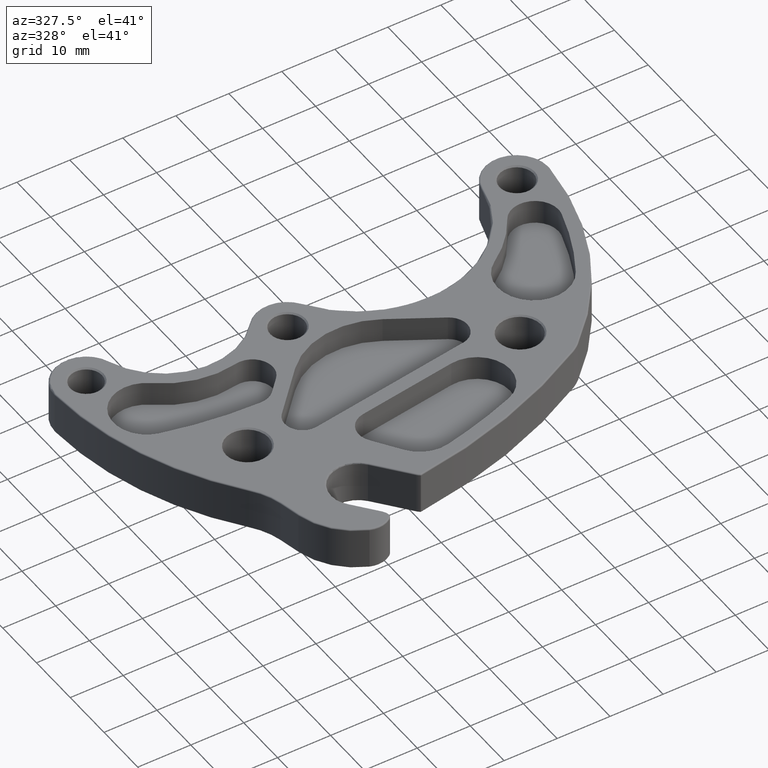
[diagram: clean part render]
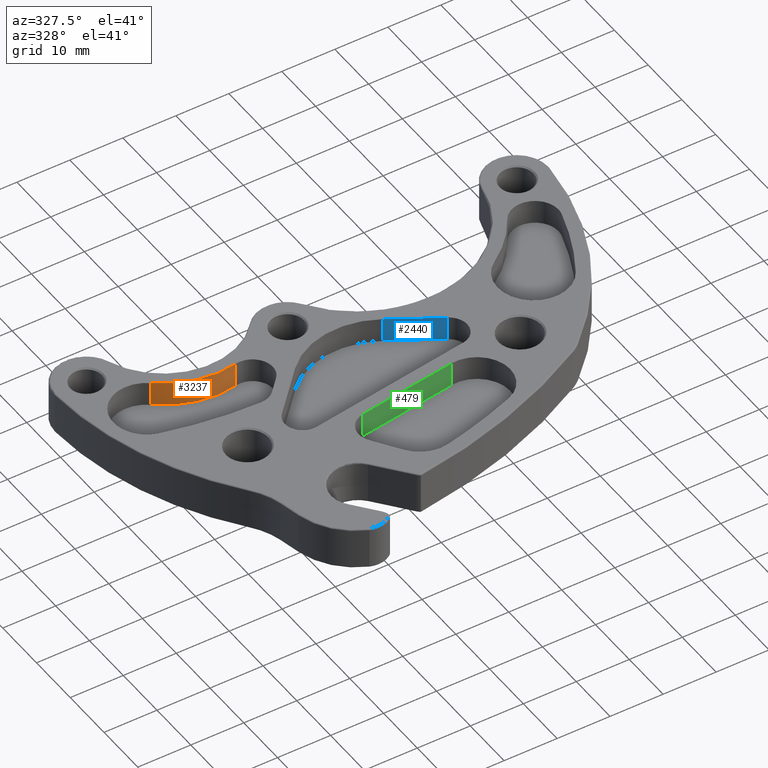
[diagram: same view with three faces highlighted in distinct colors, each labeled with its STEP entity id]
A machine part, auxiliary view with three faces highlighted in distinct colors.
Their STEP definitions:

[orange] entity #3237 — the highlighted cylindrical surface (partial cylindrical patch) has radius 16.51 mm, axis along (-0, 0, 1).
#23 = DIRECTION ( 'NONE',  ( 1.000000000000000000, 0.0000000000000000000, 0.0000000000000000000 ) ) ;
#51 = VECTOR ( 'NONE', #3069, 39.37007874015748143 ) ;
#52 = EDGE_CURVE ( 'NONE', #3105, #295, #1314, .T. ) ;
#237 = AXIS2_PLACEMENT_3D ( 'NONE', #2423, #764, #2697 ) ;
#295 = VERTEX_POINT ( 'NONE', #474 ) ;
#348 = AXIS2_PLACEMENT_3D ( 'NONE', #3348, #1147, #23 ) ;
#474 = CARTESIAN_POINT ( 'NONE',  ( 0.6222914329167578140, -5.198282679521770255, 0.1349999999999997591 ) ) ;
#707 = VERTEX_POINT ( 'NONE', #1936 ) ;
#764 = DIRECTION ( 'NONE',  ( 9.013352139732279557E-31, -3.389636702121541407E-30, -1.000000000000000000 ) ) ;
#866 = CARTESIAN_POINT ( 'NONE',  ( 1.167992254190264312, -5.328399486803256480, 0.1349999999999997868 ) ) ;
#1147 = DIRECTION ( 'NONE',  ( -9.013352139732279557E-31, 3.389636702121541407E-30, 1.000000000000000000 ) ) ;
#1193 = EDGE_LOOP ( 'NONE', ( #2211, #3007, #3157, #2379 ) ) ;
#1206 = VERTEX_POINT ( 'NONE', #3168 ) ;
#1266 = CARTESIAN_POINT ( 'NONE',  ( 1.031141242855998286, -4.692969080939005444, 0.1349999999999997868 ) ) ;
#1314 = CIRCLE ( 'NONE', #2918, 0.6500000000000154543 ) ;
#1409 = CYLINDRICAL_SURFACE ( 'NONE', #348, 0.6500000000000154543 ) ;
#1448 = DIRECTION ( 'NONE',  ( 1.000000000000000000, 0.0000000000000000000, 0.0000000000000000000 ) ) ;
#1836 = CIRCLE ( 'NONE', #237, 0.6500000000000154543 ) ;
#1936 = CARTESIAN_POINT ( 'NONE',  ( 1.167992254190266754, -5.328399486803256480, 0.3149999999999994471 ) ) ;
#2050 = LINE ( 'NONE', #3313, #3510 ) ;
#2211 = ORIENTED_EDGE ( 'NONE', *, *, #3114, .T. ) ;
#2217 = FACE_OUTER_BOUND ( 'NONE', #1193, .T. ) ;
#2374 = EDGE_CURVE ( 'NONE', #3105, #707, #2912, .T. ) ;
#2379 = ORIENTED_EDGE ( 'NONE', *, *, #2374, .T. ) ;
#2423 = CARTESIAN_POINT ( 'NONE',  ( 1.031141242856000506, -4.692969080939001891, 0.3149999999999994471 ) ) ;
#2697 = DIRECTION ( 'NONE',  ( 1.000000000000000000, 0.0000000000000000000, 0.0000000000000000000 ) ) ;
#2756 = DIRECTION ( 'NONE',  ( -9.013352139732279557E-31, 3.389636702121541407E-30, 1.000000000000000000 ) ) ;
#2840 = DIRECTION ( 'NONE',  ( 9.013352139732279557E-31, -3.389636702121541407E-30, -1.000000000000000000 ) ) ;
#2903 = EDGE_CURVE ( 'NONE', #295, #1206, #2050, .T. ) ;
#2912 = LINE ( 'NONE', #866, #51 ) ;
#2918 = AXIS2_PLACEMENT_3D ( 'NONE', #1266, #2840, #1448 ) ;
#2950 = CARTESIAN_POINT ( 'NONE',  ( 1.167992254190264312, -5.328399486803256480, 0.1349999999999997868 ) ) ;
#3007 = ORIENTED_EDGE ( 'NONE', *, *, #2903, .F. ) ;
#3069 = DIRECTION ( 'NONE',  ( -9.013352139732279557E-31, 3.389636702121541407E-30, 1.000000000000000000 ) ) ;
#3105 = VERTEX_POINT ( 'NONE', #2950 ) ;
#3114 = EDGE_CURVE ( 'NONE', #707, #1206, #1836, .T. ) ;
#3157 = ORIENTED_EDGE ( 'NONE', *, *, #52, .F. ) ;
#3168 = CARTESIAN_POINT ( 'NONE',  ( 0.6222914329167594794, -5.198282679521769367, 0.3149999999999993916 ) ) ;
#3237 = ADVANCED_FACE ( 'NONE', ( #2217 ), #1409, .T. ) ;
#3313 = CARTESIAN_POINT ( 'NONE',  ( 0.6222914329167578140, -5.198282679521770255, 0.1349999999999997591 ) ) ;
#3348 = CARTESIAN_POINT ( 'NONE',  ( 1.031141242855998286, -4.692969080939005444, 0.1349999999999997868 ) ) ;
#3510 = VECTOR ( 'NONE', #2756, 39.37007874015748143 ) ;

[blue] entity #2440 — the highlighted planar face has unit normal (0.5034, 0.864, 0).
#153 = ORIENTED_EDGE ( 'NONE', *, *, #495, .F. ) ;
#190 = DIRECTION ( 'NONE',  ( -0.8640376460999206198, 0.5034272004193933725, 2.643916627654797729E-30 ) ) ;
#356 = VECTOR ( 'NONE', #1497, 39.37007874015748143 ) ;
#495 = EDGE_CURVE ( 'NONE', #795, #507, #3111, .T. ) ;
#507 = VERTEX_POINT ( 'NONE', #3260 ) ;
#536 = VERTEX_POINT ( 'NONE', #1590 ) ;
#634 = DIRECTION ( 'NONE',  ( 0.5034272004193934835, 0.8640376460999207309, 3.180095524172204541E-30 ) ) ;
#731 = EDGE_CURVE ( 'NONE', #1625, #795, #2758, .T. ) ;
#795 = VERTEX_POINT ( 'NONE', #1607 ) ;
#853 = EDGE_CURVE ( 'NONE', #536, #507, #1983, .T. ) ;
#929 = CARTESIAN_POINT ( 'NONE',  ( 2.526981605814136334, -5.668818055895314956, 0.1349999999999997591 ) ) ;
#1102 = LINE ( 'NONE', #929, #356 ) ;
#1186 = PLANE ( 'NONE',  #1408 ) ;
#1260 = VECTOR ( 'NONE', #190, 39.37007874015748854 ) ;
#1397 = CARTESIAN_POINT ( 'NONE',  ( 2.173330800213257419, -5.462765187952187240, 0.1349999999999998701 ) ) ;
#1408 = AXIS2_PLACEMENT_3D ( 'NONE', #1725, #634, #2565 ) ;
#1497 = DIRECTION ( 'NONE',  ( -9.013352139732279557E-31, 3.389636702121541407E-30, 1.000000000000000000 ) ) ;
#1590 = CARTESIAN_POINT ( 'NONE',  ( 2.526981605814136334, -5.668818055895314956, 0.3149999999999994471 ) ) ;
#1607 = CARTESIAN_POINT ( 'NONE',  ( 2.173330800213257419, -5.462765187952187240, 0.1349999999999998701 ) ) ;
#1625 = VERTEX_POINT ( 'NONE', #3056 ) ;
#1725 = CARTESIAN_POINT ( 'NONE',  ( 2.526981605814136334, -5.668818055895314956, 0.1349999999999997591 ) ) ;
#1931 = FACE_OUTER_BOUND ( 'NONE', #2980, .T. ) ;
#1983 = LINE ( 'NONE', #3275, #1260 ) ;
#2377 = VECTOR ( 'NONE', #3226, 39.37007874015748143 ) ;
#2440 = ADVANCED_FACE ( 'NONE', ( #1931 ), #1186, .F. ) ;
#2538 = EDGE_CURVE ( 'NONE', #1625, #536, #1102, .T. ) ;
#2565 = DIRECTION ( 'NONE',  ( -0.8640376460999207309, 0.5034272004193934835, 2.773339119917621030E-30 ) ) ;
#2758 = LINE ( 'NONE', #2787, #3150 ) ;
#2787 = CARTESIAN_POINT ( 'NONE',  ( 2.526981605814136334, -5.668818055895314956, 0.1349999999999997591 ) ) ;
#2887 = ORIENTED_EDGE ( 'NONE', *, *, #853, .T. ) ;
#2907 = ORIENTED_EDGE ( 'NONE', *, *, #2538, .T. ) ;
#2980 = EDGE_LOOP ( 'NONE', ( #2887, #153, #3005, #2907 ) ) ;
#3005 = ORIENTED_EDGE ( 'NONE', *, *, #731, .F. ) ;
#3056 = CARTESIAN_POINT ( 'NONE',  ( 2.526981605814136334, -5.668818055895314956, 0.1349999999999997591 ) ) ;
#3111 = LINE ( 'NONE', #1397, #2377 ) ;
#3150 = VECTOR ( 'NONE', #3570, 39.37007874015748854 ) ;
#3226 = DIRECTION ( 'NONE',  ( -9.013352139732279557E-31, 3.389636702121541407E-30, 1.000000000000000000 ) ) ;
#3260 = CARTESIAN_POINT ( 'NONE',  ( 2.173330800213257419, -5.462765187952187240, 0.3149999999999994471 ) ) ;
#3275 = CARTESIAN_POINT ( 'NONE',  ( 2.526981605814136334, -5.668818055895314956, 0.3149999999999994471 ) ) ;
#3570 = DIRECTION ( 'NONE',  ( -0.8640376460999206198, 0.5034272004193933725, 2.643916627654797729E-30 ) ) ;

[green] entity #479 — the highlighted planar face has unit normal (-0.1514, 0.9885, 0).
#60 = CARTESIAN_POINT ( 'NONE',  ( 2.308259424000808302, -6.050663432961044919, 0.3149999999999991140 ) ) ;
#75 = VECTOR ( 'NONE', #1152, 39.37007874015748854 ) ;
#178 = ORIENTED_EDGE ( 'NONE', *, *, #2921, .T. ) ;
#299 = CARTESIAN_POINT ( 'NONE',  ( 2.308259424000808302, -6.050663432961044919, 0.1349999999999998701 ) ) ;
#479 = ADVANCED_FACE ( 'NONE', ( #1080 ), #1873, .F. ) ;
#517 = EDGE_CURVE ( 'NONE', #1735, #3154, #821, .T. ) ;
#792 = DIRECTION ( 'NONE',  ( -9.013352139732279557E-31, 3.389636702121541407E-30, 1.000000000000000000 ) ) ;
#821 = LINE ( 'NONE', #3589, #75 ) ;
#850 = VECTOR ( 'NONE', #792, 39.37007874015748143 ) ;
#936 = LINE ( 'NONE', #3538, #850 ) ;
#1017 = ORIENTED_EDGE ( 'NONE', *, *, #1473, .T. ) ;
#1080 = FACE_OUTER_BOUND ( 'NONE', #1832, .T. ) ;
#1081 = DIRECTION ( 'NONE',  ( -9.013352139732279557E-31, 3.389636702121541407E-30, 1.000000000000000000 ) ) ;
#1124 = CARTESIAN_POINT ( 'NONE',  ( 2.308259424000808746, -6.050663432961049359, 0.1349999999999998701 ) ) ;
#1152 = DIRECTION ( 'NONE',  ( -0.9884758452287999431, -0.1513786755101575454, 2.064596900383118148E-31 ) ) ;
#1412 = VECTOR ( 'NONE', #3369, 39.37007874015748854 ) ;
#1453 = CARTESIAN_POINT ( 'NONE',  ( 2.308259424000808746, -6.050663432961049359, 0.3149999999999991140 ) ) ;
#1473 = EDGE_CURVE ( 'NONE', #1735, #1774, #3033, .T. ) ;
#1735 = VERTEX_POINT ( 'NONE', #3093 ) ;
#1774 = VERTEX_POINT ( 'NONE', #60 ) ;
#1832 = EDGE_LOOP ( 'NONE', ( #178, #3061, #1878, #1017 ) ) ;
#1873 = PLANE ( 'NONE',  #2797 ) ;
#1878 = ORIENTED_EDGE ( 'NONE', *, *, #517, .F. ) ;
#1886 = CARTESIAN_POINT ( 'NONE',  ( 1.583087018383466216, -6.161718891532684594, 0.1349999999999997868 ) ) ;
#1894 = CARTESIAN_POINT ( 'NONE',  ( 1.583087018383469324, -6.161718891532678377, 0.3149999999999991140 ) ) ;
#2305 = VECTOR ( 'NONE', #1081, 39.37007874015748143 ) ;
#2416 = DIRECTION ( 'NONE',  ( -0.1513786755101577952, 0.9884758452287999431, 3.993608332681373666E-30 ) ) ;
#2455 = DIRECTION ( 'NONE',  ( -0.9884758452287999431, -0.1513786755101577952, 1.556151395064887226E-31 ) ) ;
#2695 = LINE ( 'NONE', #1453, #1412 ) ;
#2790 = VERTEX_POINT ( 'NONE', #1894 ) ;
#2797 = AXIS2_PLACEMENT_3D ( 'NONE', #1124, #2416, #2455 ) ;
#2825 = EDGE_CURVE ( 'NONE', #3154, #2790, #936, .T. ) ;
#2921 = EDGE_CURVE ( 'NONE', #1774, #2790, #2695, .T. ) ;
#3033 = LINE ( 'NONE', #299, #2305 ) ;
#3061 = ORIENTED_EDGE ( 'NONE', *, *, #2825, .F. ) ;
#3093 = CARTESIAN_POINT ( 'NONE',  ( 2.308259424000808302, -6.050663432961044919, 0.1349999999999998701 ) ) ;
#3154 = VERTEX_POINT ( 'NONE', #1886 ) ;
#3369 = DIRECTION ( 'NONE',  ( -0.9884758452287999431, -0.1513786755101575454, 2.064596900383118148E-31 ) ) ;
#3538 = CARTESIAN_POINT ( 'NONE',  ( 1.583087018383466216, -6.161718891532684594, 0.1349999999999997868 ) ) ;
#3589 = CARTESIAN_POINT ( 'NONE',  ( 2.308259424000808746, -6.050663432961049359, 0.1349999999999998701 ) ) ;